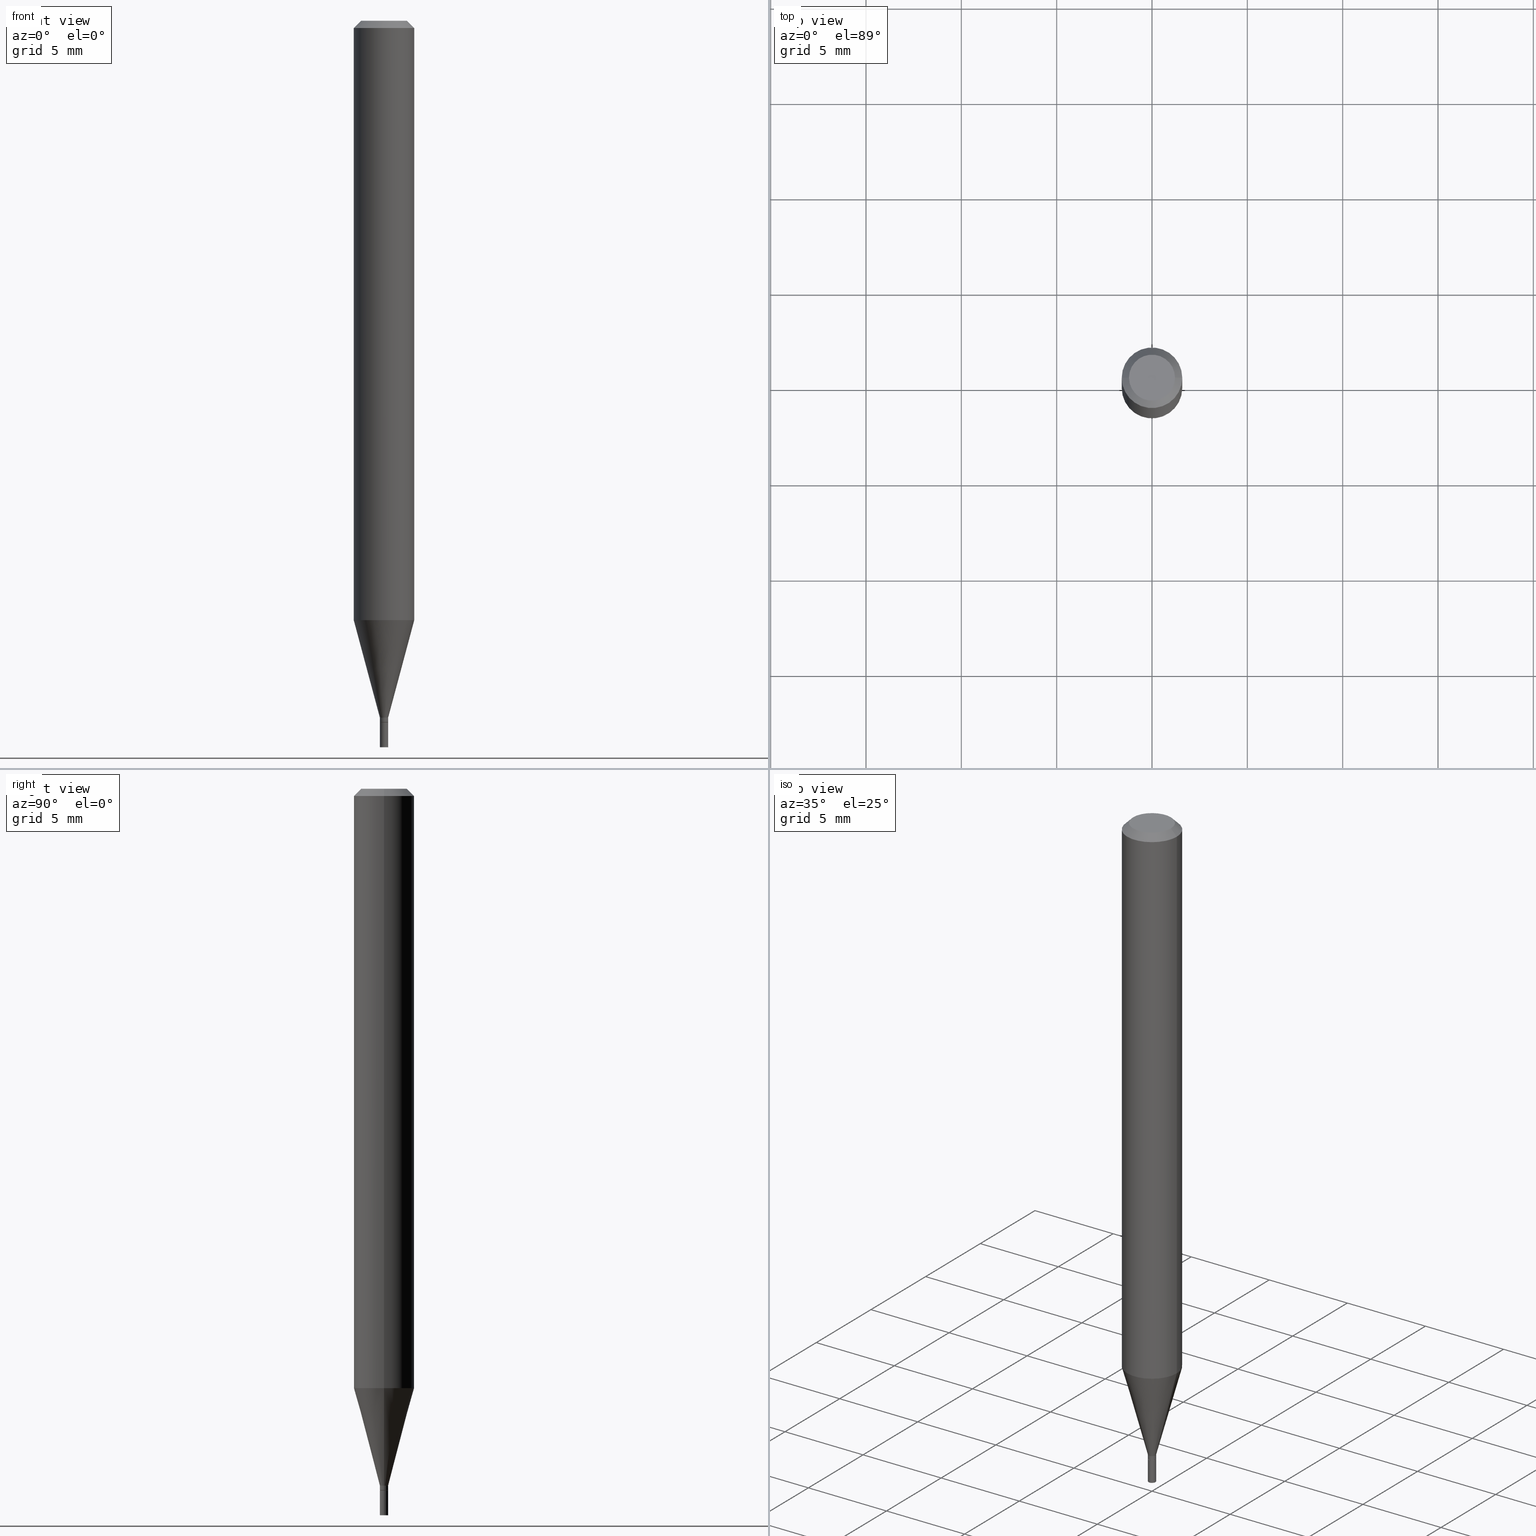
[diagram: canonical four-view strip — front | top / right | iso, engineering-drawing reading convention]
A machine part, canonical four-view strip (front | top / right | iso — engineering-drawing reading convention). The complete STEP part file that produces these views, byte-faithful:
ISO-10303-21;
HEADER;
FILE_DESCRIPTION (( 'STEP AP203' ),
    '1' );
FILE_NAME ('02287.STEP',
    '2024-03-18T20:01:18',
    ( '' ),
    ( '' ),
    'SwSTEP 2.0',
    'SolidWorks 2023',
    '' );
FILE_SCHEMA (( 'CONFIG_CONTROL_DESIGN' ));
ENDSEC;

DATA;
#1 = DIRECTION ( 'NONE',  ( 1.000000000000000000, -6.982962677686266711E-15, 4.876176775795936353E-29 ) ) ;
#2 = EDGE_LOOP ( 'NONE', ( #289, #50, #224, #191 ) ) ;
#3 = DIRECTION ( 'NONE',  ( -2.445468806185136597E-29, 3.491481338843145583E-15, 1.000000000000000000 ) ) ;
#4 = EDGE_CURVE ( 'NONE', #117, #370, #388, .T. ) ;
#5 = DIRECTION ( 'NONE',  ( 1.000000000000000000, -6.982962677686265922E-15, 4.876176775795935793E-29 ) ) ;
#6 = VECTOR ( 'NONE', #186, 39.37007874015748143 ) ;
#7 = CARTESIAN_POINT ( 'NONE',  ( 0.000000000000000000, 0.000000000000000000, 0.000000000000000000 ) ) ;
#8 = DATE_AND_TIME ( #66, #102 ) ;
#9 = CIRCLE ( 'NONE', #332, 0.06250000000000000000 ) ;
#10 = CARTESIAN_POINT ( 'NONE',  ( 0.008499999999999922548, -5.083596829355619552E-15, -1.439000000000000057 ) ) ;
#11 = DIRECTION ( 'NONE',  ( -2.445468806185136597E-29, 3.491481338843145583E-15, 1.000000000000000000 ) ) ;
#12 = VERTEX_POINT ( 'NONE', #217 ) ;
#13 = APPROVAL_STATUS ( 'not_yet_approved' ) ;
#14 = ORIENTED_EDGE ( 'NONE', *, *, #391, .T. ) ;
#15 = DIMENSIONAL_EXPONENTS ( 1.000000000000000000, 0.000000000000000000, 0.000000000000000000, 0.000000000000000000, 0.000000000000000000, 0.000000000000000000, 0.000000000000000000 ) ;
#16 = AXIS2_PLACEMENT_3D ( 'NONE', #428, #3, #296 ) ;
#17 = AXIS2_PLACEMENT_3D ( 'NONE', #68, #205, #340 ) ;
#18 = EDGE_CURVE ( 'NONE', #117, #213, #319, .T. ) ;
#19 = DIRECTION ( 'NONE',  ( 0.000000000000000000, 0.000000000000000000, 1.000000000000000000 ) ) ;
#20 = EDGE_CURVE ( 'NONE', #338, #187, #45, .T. ) ;
#21 = PERSON_AND_ORGANIZATION_ROLE ( 'creator' ) ;
#22 = CARTESIAN_POINT ( 'NONE',  ( -0.008499999999999922548, 6.039613253960796547E-17, -4.181094826716631533E-31 ) ) ;
#23 = CLOSED_SHELL ( 'NONE', ( #183, #116, #415, #195, #437, #442, #282, #447, #271, #348, #343, #357 ) ) ;
#24 = MANIFOLD_SOLID_BREP ( 'Body-Move/Copy2[1]', #297 ) ;
#25 = MANIFOLD_SOLID_BREP ( 'Body-Move/Copy2[2]', #23 ) ;
#26 = VECTOR ( 'NONE', #407, 39.37007874015748143 ) ;
#27 = LOCAL_TIME ( 16, 1, 18.00000000000000000, #307 ) ;
#28 = DIRECTION ( 'NONE',  ( 1.000000000000000000, -6.982962677686266711E-15, 0.000000000000000000 ) ) ;
#29 = APPROVAL_ROLE ( '' ) ;
#30 = EDGE_CURVE ( 'NONE', #435, #181, #272, .T. ) ;
#31 = DIRECTION ( 'NONE',  ( -1.000000000000000000, 6.982962677686265922E-15, -4.876176775795935793E-29 ) ) ;
#32 = DIRECTION ( 'NONE',  ( 1.000000000000000000, -6.982962677686211490E-15, 0.000000000000000000 ) ) ;
#33 = EDGE_LOOP ( 'NONE', ( #100, #260, #14, #219 ) ) ;
#34 = DIRECTION ( 'NONE',  ( 0.7071067811865134889, -7.319954787623140872E-15, -0.7071067811865816566 ) ) ;
#35 = CARTESIAN_POINT ( 'NONE',  ( 0.008000000000000000167, -5.115020161405208194E-15, -1.449000000000000066 ) ) ;
#36 = CIRCLE ( 'NONE', #300, 0.008500000000000000611 ) ;
#37 = EDGE_CURVE ( 'NONE', #181, #52, #150, .T. ) ;
#38 = CIRCLE ( 'NONE', #262, 0.06250000000000000000 ) ;
#39 = DIRECTION ( 'NONE',  ( -2.445468806185136597E-29, 3.491481338843145583E-15, 1.000000000000000000 ) ) ;
#40 = ORIENTED_EDGE ( 'NONE', *, *, #366, .T. ) ;
#41 = FACE_OUTER_BOUND ( 'NONE', #121, .T. ) ;
#42 = ORIENTED_EDGE ( 'NONE', *, *, #158, .F. ) ;
#43 = EDGE_CURVE ( 'NONE', #81, #421, #317, .T. ) ;
#44 = CARTESIAN_POINT ( 'NONE',  ( 3.542261565759170446E-29, -5.057410719314296998E-15, -1.448500000000000121 ) ) ;
#45 = LINE ( 'NONE', #284, #6 ) ;
#46 = CARTESIAN_POINT ( 'NONE',  ( 0.008500000000000000611, -5.118511642744051990E-15, -1.449000000000000066 ) ) ;
#47 = AXIS2_PLACEMENT_3D ( 'NONE', #223, #295, #390 ) ;
#48 = PRODUCT ( '02287', '02287', '', ( #240 ) ) ;
#49 = CARTESIAN_POINT ( 'NONE',  ( -0.008499999999999922548, -4.997014586774688823E-15, -1.448500000000000121 ) ) ;
#50 = ORIENTED_EDGE ( 'NONE', *, *, #446, .T. ) ;
#51 = FACE_OUTER_BOUND ( 'NONE', #461, .T. ) ;
#52 = VERTEX_POINT ( 'NONE', #49 ) ;
#53 = CARTESIAN_POINT ( 'NONE',  ( 3.543484300162263247E-29, -5.059156459983718502E-15, -1.449000000000000066 ) ) ;
#54 = ORIENTED_EDGE ( 'NONE', *, *, #267, .F. ) ;
#55 = EDGE_CURVE ( 'NONE', #181, #435, #237, .T. ) ;
#56 = COORDINATED_UNIVERSAL_TIME_OFFSET ( 5, 0, .BEHIND. ) ;
#57 = AXIS2_PLACEMENT_3D ( 'NONE', #126, #285, #88 ) ;
#58 = APPROVAL_PERSON_ORGANIZATION ( #333, #410, #334 ) ;
#59 = CONICAL_SURFACE ( 'NONE', #65, 0.008499999999999922548, 0.2617993877991501295 ) ;
#60 = ORIENTED_EDGE ( 'NONE', *, *, #158, .T. ) ;
#61 = APPROVAL_ROLE ( '' ) ;
#62 = CONICAL_SURFACE ( 'NONE', #148, 0.06250000000000000000, 0.7853981633974000953 ) ;
#63 = PLANE ( 'NONE',  #360 ) ;
#64 = APPLICATION_CONTEXT ( 'configuration controlled 3d designs of mechanical parts and assemblies' ) ;
#65 = AXIS2_PLACEMENT_3D ( 'NONE', #463, #39, #216 ) ;
#66 = CALENDAR_DATE ( 2024, 18, 3 ) ;
#67 = CARTESIAN_POINT ( 'NONE',  ( 0.008000000000000000167, -5.115020161405208194E-15, -1.449000000000000066 ) ) ;
#68 = CARTESIAN_POINT ( 'NONE',  ( 3.519029612100411702E-29, -5.024241646595286853E-15, -1.439000000000000057 ) ) ;
#69 = CARTESIAN_POINT ( 'NONE',  ( -0.06249999999999999306, -3.876511606232199217E-15, -1.237469256391281025 ) ) ;
#70 = PERSON_AND_ORGANIZATION_ROLE ( 'classification_officer' ) ;
#71 = EDGE_CURVE ( 'NONE', #218, #187, #310, .T. ) ;
#72 = APPROVAL ( #13, 'UNSPECIFIED' ) ;
#73 =( GEOMETRIC_REPRESENTATION_CONTEXT ( 3 ) GLOBAL_UNCERTAINTY_ASSIGNED_CONTEXT ( ( #90 ) ) GLOBAL_UNIT_ASSIGNED_CONTEXT ( ( #212, #266, #404 ) ) REPRESENTATION_CONTEXT ( 'NONE', 'WORKASPACE' ) );
#74 = ORIENTED_EDGE ( 'NONE', *, *, #30, .F. ) ;
#75 = AXIS2_PLACEMENT_3D ( 'NONE', #358, #324, #1 ) ;
#76 = LENGTH_MEASURE_WITH_UNIT ( LENGTH_MEASURE( 0.02539999999999999897 ), #246 );
#77 = LINE ( 'NONE', #416, #137 ) ;
#78 = FACE_OUTER_BOUND ( 'NONE', #83, .T. ) ;
#79 = CYLINDRICAL_SURFACE ( 'NONE', #91, 0.06250000000000000000 ) ;
#80 = AXIS2_PLACEMENT_3D ( 'NONE', #120, #460, #466 ) ;
#81 = VERTEX_POINT ( 'NONE', #247 ) ;
#82 = AXIS2_PLACEMENT_3D ( 'NONE', #280, #242, #109 ) ;
#83 = EDGE_LOOP ( 'NONE', ( #95, #233, #160, #54 ) ) ;
#84 = CARTESIAN_POINT ( 'NONE',  ( 3.519029612100411702E-29, -5.024241646595286853E-15, -1.439000000000000057 ) ) ;
#85 = FACE_OUTER_BOUND ( 'NONE', #33, .T. ) ;
#86 = VERTEX_POINT ( 'NONE', #383 ) ;
#87 = DIRECTION ( 'NONE',  ( -2.445468806185136597E-29, 3.491481338843145583E-15, 1.000000000000000000 ) ) ;
#88 = DIRECTION ( 'NONE',  ( 1.000000000000000000, -6.982962677686267499E-15, 5.108144071313017768E-29 ) ) ;
#89 = ORIENTED_EDGE ( 'NONE', *, *, #136, .T. ) ;
#90 = UNCERTAINTY_MEASURE_WITH_UNIT (LENGTH_MEASURE( 1.000000000000000082E-05 ), #212, 'distance_accuracy_value', 'NONE');
#91 = AXIS2_PLACEMENT_3D ( 'NONE', #309, #306, #393 ) ;
#92 = PRODUCT_DEFINITION_FORMATION_WITH_SPECIFIED_SOURCE ( 'ANY', '', #48, .NOT_KNOWN. ) ;
#93 = FACE_OUTER_BOUND ( 'NONE', #327, .T. ) ;
#94 = DIRECTION ( 'NONE',  ( -2.445468806185136597E-29, 3.491481338843145583E-15, 1.000000000000000000 ) ) ;
#95 = ORIENTED_EDGE ( 'NONE', *, *, #18, .F. ) ;
#96 = DIRECTION ( 'NONE',  ( -0.7071067811865134889, 2.468850131081900101E-15, -0.7071067811865816566 ) ) ;
#97 = EDGE_LOOP ( 'NONE', ( #362, #60 ) ) ;
#98 = APPROVAL_DATE_TIME ( #8, #410 ) ;
#99 = CYLINDRICAL_SURFACE ( 'NONE', #75, 0.008499999999999922548 ) ;
#100 = ORIENTED_EDGE ( 'NONE', *, *, #204, .F. ) ;
#101 = AXIS2_PLACEMENT_3D ( 'NONE', #276, #243, #28 ) ;
#102 = LOCAL_TIME ( 16, 1, 18.00000000000000000, #104 ) ;
#103 = EDGE_CURVE ( 'NONE', #352, #12, #77, .T. ) ;
#104 = COORDINATED_UNIVERSAL_TIME_OFFSET ( 5, 0, .BEHIND. ) ;
#105 = APPLICATION_PROTOCOL_DEFINITION ( 'international standard', 'config_control_design', 1994, #325 ) ;
#106 = AXIS2_PLACEMENT_3D ( 'NONE', #398, #222, #392 ) ;
#107 = DATE_AND_TIME ( #203, #303 ) ;
#108 = VECTOR ( 'NONE', #430, 39.37007874015748143 ) ;
#109 = DIRECTION ( 'NONE',  ( 1.000000000000000000, -6.982962677686211490E-15, 0.000000000000000000 ) ) ;
#110 = DIRECTION ( 'NONE',  ( -2.445468806185136597E-29, 3.491481338843145583E-15, 1.000000000000000000 ) ) ;
#111 = DIRECTION ( 'NONE',  ( -1.000000000000000000, 6.982962677686266711E-15, 0.000000000000000000 ) ) ;
#112 = CARTESIAN_POINT ( 'NONE',  ( 3.543484300162263247E-29, -5.059156459983718502E-15, -1.449000000000000066 ) ) ;
#113 = AXIS2_PLACEMENT_3D ( 'NONE', #234, #94, #294 ) ;
#114 = LOCAL_TIME ( 16, 1, 18.00000000000000000, #56 ) ;
#115 = DIRECTION ( 'NONE',  ( 1.000000000000000000, -6.982962677686262766E-15, 0.000000000000000000 ) ) ;
#116 = ADVANCED_FACE ( 'NONE', ( #308 ), #123, .T. ) ;
#117 = VERTEX_POINT ( 'NONE', #118 ) ;
#118 = CARTESIAN_POINT ( 'NONE',  ( -0.008499999999999922548, -4.420178560143938947E-15, -1.439000000000000057 ) ) ;
#119 = DIRECTION ( 'NONE',  ( -2.445468806185136877E-29, 3.491481338843145188E-15, 1.000000000000000000 ) ) ;
#120 = CARTESIAN_POINT ( 'NONE',  ( 3.543484300162263247E-29, -5.059156459983718502E-15, -1.449000000000000066 ) ) ;
#121 = EDGE_LOOP ( 'NONE', ( #40, #255, #254, #130 ) ) ;
#122 = DIRECTION ( 'NONE',  ( 2.445468806185136597E-29, -3.491481338843145583E-15, -1.000000000000000000 ) ) ;
#123 = CONICAL_SURFACE ( 'NONE', #82, 0.008000000000000000167, 0.7853981633974718157 ) ;
#124 = CARTESIAN_POINT ( 'NONE',  ( 3.543484300162263247E-29, -5.059156459983718502E-15, -1.449000000000000066 ) ) ;
#125 = FACE_OUTER_BOUND ( 'NONE', #2, .T. ) ;
#126 = CARTESIAN_POINT ( 'NONE',  ( -3.538878827018360888E-44, 5.052581064911080951E-30, 1.447116732001547520E-15 ) ) ;
#127 = ORIENTED_EDGE ( 'NONE', *, *, #103, .F. ) ;
#128 = DIRECTION ( 'NONE',  ( 0.2588190451025214611, 1.565188264969621573E-15, 0.9659258262890682012 ) ) ;
#129 = CARTESIAN_POINT ( 'NONE',  ( -0.06250000000000000000, 4.440892098500626162E-16, -3.074334431409316114E-30 ) ) ;
#130 = ORIENTED_EDGE ( 'NONE', *, *, #391, .F. ) ;
#131 = AXIS2_PLACEMENT_3D ( 'NONE', #7, #384, #161 ) ;
#132 = CARTESIAN_POINT ( 'NONE',  ( 3.543484300162263247E-29, -5.059156459983718502E-15, -1.449000000000000066 ) ) ;
#133 = CC_DESIGN_DATE_AND_TIME_ASSIGNMENT ( #171, #173, ( #424 ) ) ;
#134 = ORIENTED_EDGE ( 'NONE', *, *, #200, .F. ) ;
#135 = DIRECTION ( 'NONE',  ( 1.000000000000000000, 0.000000000000000000, 0.000000000000000000 ) ) ;
#136 = EDGE_CURVE ( 'NONE', #370, #117, #344, .T. ) ;
#137 = VECTOR ( 'NONE', #177, 39.37007874015748143 ) ;
#138 = CC_DESIGN_APPROVAL ( #410, ( #92 ) ) ;
#139 = CIRCLE ( 'NONE', #389, 0.008500000000000000611 ) ;
#140 = ORIENTED_EDGE ( 'NONE', *, *, #18, .T. ) ;
#141 = PERSON_AND_ORGANIZATION_ROLE ( 'creator' ) ;
#142 = ORIENTED_EDGE ( 'NONE', *, *, #43, .F. ) ;
#143 = CARTESIAN_POINT ( 'NONE',  ( 3.026192465117994899E-29, -4.320600816082261833E-15, -1.237469256391281025 ) ) ;
#144 = CARTESIAN_POINT ( 'NONE',  ( 3.668203209277705088E-31, -5.237222008264718399E-17, -0.01499999999999999944 ) ) ;
#145 = ORIENTED_EDGE ( 'NONE', *, *, #20, .T. ) ;
#146 = AXIS2_PLACEMENT_3D ( 'NONE', #337, #19, #135 ) ;
#147 = VECTOR ( 'NONE', #96, 39.37007874015748143 ) ;
#148 = AXIS2_PLACEMENT_3D ( 'NONE', #452, #122, #250 ) ;
#149 = DIRECTION ( 'NONE',  ( -1.000000000000000000, 6.982962677686265922E-15, -4.876176775795935793E-29 ) ) ;
#150 = LINE ( 'NONE', #292, #108 ) ;
#151 = ORIENTED_EDGE ( 'NONE', *, *, #386, .T. ) ;
#152 = LINE ( 'NONE', #291, #323 ) ;
#153 = ORIENTED_EDGE ( 'NONE', *, *, #456, .T. ) ;
#154 = ORIENTED_EDGE ( 'NONE', *, *, #71, .F. ) ;
#155 = LINE ( 'NONE', #322, #406 ) ;
#156 = CARTESIAN_POINT ( 'NONE',  ( 0.000000000000000000, 0.000000000000000000, 0.000000000000000000 ) ) ;
#157 = EDGE_LOOP ( 'NONE', ( #151, #427, #434, #127 ) ) ;
#158 = EDGE_CURVE ( 'NONE', #421, #81, #417, .T. ) ;
#159 = CARTESIAN_POINT ( 'NONE',  ( 0.06249999999999999306, -4.757035983437653502E-15, -1.237469256391281025 ) ) ;
#160 = ORIENTED_EDGE ( 'NONE', *, *, #200, .T. ) ;
#161 = DIRECTION ( 'NONE',  ( 1.000000000000000000, -6.982962677686267499E-15, 4.876176775795935793E-29 ) ) ;
#162 = LINE ( 'NONE', #129, #252 ) ;
#163 = VERTEX_POINT ( 'NONE', #354 ) ;
#164 = ORIENTED_EDGE ( 'NONE', *, *, #395, .F. ) ;
#165 = DIRECTION ( 'NONE',  ( -2.438088387897960049E-29, 3.491481338843145188E-15, 1.000000000000000000 ) ) ;
#166 = AXIS2_PLACEMENT_3D ( 'NONE', #132, #87, #326 ) ;
#167 = CARTESIAN_POINT ( 'NONE',  ( 0.000000000000000000, 0.000000000000000000, 0.000000000000000000 ) ) ;
#168 = PERSON_AND_ORGANIZATION ( #268, #238 ) ;
#169 = ORIENTED_EDGE ( 'NONE', *, *, #30, .T. ) ;
#170 = FACE_OUTER_BOUND ( 'NONE', #293, .T. ) ;
#171 = DATE_AND_TIME ( #342, #361 ) ;
#172 = AXIS2_PLACEMENT_3D ( 'NONE', #156, #193, #232 ) ;
#173 = DATE_TIME_ROLE ( 'classification_date' ) ;
#174 = LINE ( 'NONE', #315, #263 ) ;
#175 = DIRECTION ( 'NONE',  ( 1.000000000000000000, -6.982962677686266711E-15, 4.876176775795936353E-29 ) ) ;
#176 = FACE_OUTER_BOUND ( 'NONE', #385, .T. ) ;
#177 = DIRECTION ( 'NONE',  ( -2.445468806185136877E-29, 3.491481338843145188E-15, 1.000000000000000000 ) ) ;
#178 = CARTESIAN_POINT ( 'NONE',  ( 5.935518276036870316E-17, 0.008499999999994942157, -1.449000000000000066 ) ) ;
#179 = CIRCLE ( 'NONE', #457, 0.06250000000000000000 ) ;
#180 = DIRECTION ( 'NONE',  ( -0.2588190451025214611, 5.211531920934551042E-15, 0.9659258262890682012 ) ) ;
#181 = VERTEX_POINT ( 'NONE', #426 ) ;
#182 = DIRECTION ( 'NONE',  ( -2.445468806185136597E-29, 3.491481338843145583E-15, 1.000000000000000000 ) ) ;
#183 = ADVANCED_FACE ( 'NONE', ( #41 ), #214, .T. ) ;
#184 = ADVANCED_BREP_SHAPE_REPRESENTATION ( '02287', ( #24, #25, #146 ), #73 ) ;
#185 = DIRECTION ( 'NONE',  ( 1.000000000000000000, -6.982962677686274599E-15, 0.000000000000000000 ) ) ;
#186 = DIRECTION ( 'NONE',  ( -2.445468806185136877E-29, 3.491481338843145188E-15, 1.000000000000000000 ) ) ;
#187 = VERTEX_POINT ( 'NONE', #46 ) ;
#188 = AXIS2_PLACEMENT_3D ( 'NONE', #53, #226, #5 ) ;
#189 = DIRECTION ( 'NONE',  ( -2.445468806185136597E-29, 3.491481338843145583E-15, 1.000000000000000000 ) ) ;
#190 = ADVANCED_FACE ( 'NONE', ( #93 ), #330, .T. ) ;
#191 = ORIENTED_EDGE ( 'NONE', *, *, #20, .F. ) ;
#192 = CC_DESIGN_PERSON_AND_ORGANIZATION_ASSIGNMENT ( #168, #419, ( #92 ) ) ;
#193 = DIRECTION ( 'NONE',  ( -2.445468806185136597E-29, 3.491481338843145583E-15, 1.000000000000000000 ) ) ;
#194 = CIRCLE ( 'NONE', #450, 0.008499999999999922548 ) ;
#195 = ADVANCED_FACE ( 'NONE', ( #462 ), #329, .T. ) ;
#196 = PLANE ( 'NONE',  #188 ) ;
#197 = ORIENTED_EDGE ( 'NONE', *, *, #256, .F. ) ;
#198 = COORDINATED_UNIVERSAL_TIME_OFFSET ( 5, 0, .BEHIND. ) ;
#199 = LINE ( 'NONE', #67, #445 ) ;
#200 = EDGE_CURVE ( 'NONE', #370, #352, #155, .T. ) ;
#201 = APPROVAL_STATUS ( 'not_yet_approved' ) ;
#202 = AXIS2_PLACEMENT_3D ( 'NONE', #429, #189, #185 ) ;
#203 = CALENDAR_DATE ( 2024, 18, 3 ) ;
#204 = EDGE_CURVE ( 'NONE', #52, #117, #436, .T. ) ;
#205 = DIRECTION ( 'NONE',  ( -2.445468806185136597E-29, 3.491481338843145583E-15, 1.000000000000000000 ) ) ;
#206 = CARTESIAN_POINT ( 'NONE',  ( 3.668203209277704895E-29, -5.237222008264718177E-15, -1.500000000000000222 ) ) ;
#207 = DIRECTION ( 'NONE',  ( 2.445468806185136597E-29, -3.491481338843145583E-15, -1.000000000000000000 ) ) ;
#208 = PERSON_AND_ORGANIZATION ( #268, #238 ) ;
#209 = EDGE_CURVE ( 'NONE', #421, #12, #376, .T. ) ;
#210 = CC_DESIGN_APPROVAL ( #335, ( #424 ) ) ;
#211 = EDGE_LOOP ( 'NONE', ( #355, #142, #251, #365 ) ) ;
#212 =( CONVERSION_BASED_UNIT ( 'INCH', #76 ) LENGTH_UNIT ( ) NAMED_UNIT ( #15 ) );
#213 = VERTEX_POINT ( 'NONE', #69 ) ;
#214 = CYLINDRICAL_SURFACE ( 'NONE', #351, 0.008499999999999922548 ) ;
#215 = VECTOR ( 'NONE', #180, 39.37007874015747433 ) ;
#216 = DIRECTION ( 'NONE',  ( 1.000000000000000000, -6.982962677686225690E-15, 0.000000000000000000 ) ) ;
#217 = CARTESIAN_POINT ( 'NONE',  ( 0.06250000000000000000, -4.888073874380388472E-16, -0.01499999999999999944 ) ) ;
#218 = VERTEX_POINT ( 'NONE', #312 ) ;
#219 = ORIENTED_EDGE ( 'NONE', *, *, #4, .F. ) ;
#220 = PLANE ( 'NONE',  #261 ) ;
#221 = CARTESIAN_POINT ( 'NONE',  ( -0.06250000000000000000, 3.840629472727444916E-16, -0.01499999999999999944 ) ) ;
#222 = DIRECTION ( 'NONE',  ( -2.445468806185136597E-29, 3.491481338843145583E-15, 1.000000000000000000 ) ) ;
#223 = CARTESIAN_POINT ( 'NONE',  ( -3.538878827018360888E-44, 5.052581064911080951E-30, 1.447116732001547520E-15 ) ) ;
#224 = ORIENTED_EDGE ( 'NONE', *, *, #288, .F. ) ;
#225 = PRODUCT_RELATED_PRODUCT_CATEGORY ( 'detail', '', ( #48 ) ) ;
#226 = DIRECTION ( 'NONE',  ( -2.438088387897960049E-29, 3.491481338843145188E-15, 1.000000000000000000 ) ) ;
#227 = CIRCLE ( 'NONE', #101, 0.06250000000000000000 ) ;
#228 = AXIS2_PLACEMENT_3D ( 'NONE', #84, #182, #248 ) ;
#229 = DIRECTION ( 'NONE',  ( 1.000000000000000000, -6.982962677686274599E-15, 0.000000000000000000 ) ) ;
#230 = ORIENTED_EDGE ( 'NONE', *, *, #37, .T. ) ;
#231 = PRODUCT_DEFINITION ( 'UNKNOWN', '', #92, #290 ) ;
#232 = DIRECTION ( 'NONE',  ( 1.000000000000000000, -6.982962677686267499E-15, 4.876176775795935793E-29 ) ) ;
#233 = ORIENTED_EDGE ( 'NONE', *, *, #4, .T. ) ;
#234 = CARTESIAN_POINT ( 'NONE',  ( 3.542261565759170446E-29, -5.057410719314296998E-15, -1.448500000000000121 ) ) ;
#235 = CARTESIAN_POINT ( 'NONE',  ( 3.543484300162263247E-29, -5.059156459983718502E-15, -1.449000000000000066 ) ) ;
#236 = ORIENTED_EDGE ( 'NONE', *, *, #71, .T. ) ;
#237 = CIRCLE ( 'NONE', #279, 0.008000000000000000167 ) ;
#238 = ORGANIZATION ( 'UNSPECIFIED', 'UNSPECIFIED', '' ) ;
#239 = CARTESIAN_POINT ( 'NONE',  ( 0.06250000000000000000, -4.811533449433679005E-16, -0.01499999999999999944 ) ) ;
#240 = MECHANICAL_CONTEXT ( 'NONE', #325, 'mechanical' ) ;
#241 = CALENDAR_DATE ( 2024, 18, 3 ) ;
#242 = DIRECTION ( 'NONE',  ( -2.445468806185136597E-29, 3.491481338843145583E-15, 1.000000000000000000 ) ) ;
#243 = DIRECTION ( 'NONE',  ( -2.445468806185136597E-29, 3.491481338843145583E-15, 1.000000000000000000 ) ) ;
#244 = CARTESIAN_POINT ( 'NONE',  ( -0.06250000000000000000, -1.742397308232391840E-15, -0.01499999999999999944 ) ) ;
#245 = FACE_OUTER_BOUND ( 'NONE', #97, .T. ) ;
#246 =( LENGTH_UNIT ( ) NAMED_UNIT ( * ) SI_UNIT ( $, .METRE. ) );
#247 = CARTESIAN_POINT ( 'NONE',  ( -0.04749999999999999362, 3.578768372314235651E-16, 1.447116732001545153E-15 ) ) ;
#248 = DIRECTION ( 'NONE',  ( 1.000000000000000000, -6.982962677686225690E-15, 0.000000000000000000 ) ) ;
#249 = EDGE_LOOP ( 'NONE', ( #169, #230, #299, #377 ) ) ;
#250 = DIRECTION ( 'NONE',  ( -1.000000000000000000, 6.982962677686266711E-15, 0.000000000000000000 ) ) ;
#251 = ORIENTED_EDGE ( 'NONE', *, *, #353, .T. ) ;
#252 = VECTOR ( 'NONE', #259, 39.37007874015748143 ) ;
#253 = CC_DESIGN_APPROVAL ( #72, ( #231 ) ) ;
#254 = ORIENTED_EDGE ( 'NONE', *, *, #136, .F. ) ;
#255 = ORIENTED_EDGE ( 'NONE', *, *, #204, .T. ) ;
#256 = EDGE_CURVE ( 'NONE', #338, #86, #36, .T. ) ;
#257 = CARTESIAN_POINT ( 'NONE',  ( 3.026192465117994899E-29, -4.320600816082261833E-15, -1.237469256391281025 ) ) ;
#258 = ORIENTED_EDGE ( 'NONE', *, *, #446, .F. ) ;
#259 = DIRECTION ( 'NONE',  ( -2.445468806185136877E-29, 3.491481338843145188E-15, 1.000000000000000000 ) ) ;
#260 = ORIENTED_EDGE ( 'NONE', *, *, #374, .T. ) ;
#261 = AXIS2_PLACEMENT_3D ( 'NONE', #178, #356, #149 ) ;
#262 = AXIS2_PLACEMENT_3D ( 'NONE', #144, #320, #277 ) ;
#263 = VECTOR ( 'NONE', #119, 39.37007874015748143 ) ;
#264 = LINE ( 'NONE', #221, #147 ) ;
#265 = EDGE_LOOP ( 'NONE', ( #89, #140, #458, #134 ) ) ;
#266 =( NAMED_UNIT ( * ) PLANE_ANGLE_UNIT ( ) SI_UNIT ( $, .RADIAN. ) );
#267 = EDGE_CURVE ( 'NONE', #213, #352, #9, .T. ) ;
#268 = PERSON ( 'UNSPECIFIED', 'UNSPECIFIED', 'UNSPECIFIED', ('UNSPECIFIED'), ('UNSPECIFIED'), ('UNSPECIFIED') ) ;
#269 = CIRCLE ( 'NONE', #113, 0.008499999999999922548 ) ;
#270 = EDGE_CURVE ( 'NONE', #418, #12, #227, .T. ) ;
#271 = ADVANCED_FACE ( 'NONE', ( #245 ), #346, .F. ) ;
#272 = CIRCLE ( 'NONE', #80, 0.008000000000000000167 ) ;
#273 = AXIS2_PLACEMENT_3D ( 'NONE', #341, #454, #31 ) ;
#274 = APPROVAL_DATE_TIME ( #378, #335 ) ;
#275 = SECURITY_CLASSIFICATION_LEVEL ( 'unclassified' ) ;
#276 = CARTESIAN_POINT ( 'NONE',  ( 3.668203209277705088E-31, -5.237222008264718399E-17, -0.01499999999999999944 ) ) ;
#277 = DIRECTION ( 'NONE',  ( 1.000000000000000000, -6.982962677686266711E-15, 0.000000000000000000 ) ) ;
#278 = COORDINATED_UNIVERSAL_TIME_OFFSET ( 5, 0, .BEHIND. ) ;
#279 = AXIS2_PLACEMENT_3D ( 'NONE', #235, #372, #32 ) ;
#280 = CARTESIAN_POINT ( 'NONE',  ( 3.543484300162263247E-29, -5.059156459983718502E-15, -1.449000000000000066 ) ) ;
#281 = ORIENTED_EDGE ( 'NONE', *, *, #55, .F. ) ;
#282 = ADVANCED_FACE ( 'NONE', ( #170 ), #79, .T. ) ;
#283 = CC_DESIGN_PERSON_AND_ORGANIZATION_ASSIGNMENT ( #455, #70, ( #424 ) ) ;
#284 = CARTESIAN_POINT ( 'NONE',  ( 0.008500000000000000611, -5.935518276033327838E-17, 4.144750259426545879E-31 ) ) ;
#285 = DIRECTION ( 'NONE',  ( -2.445468806185136597E-29, 3.491481338843145583E-15, 1.000000000000000000 ) ) ;
#286 = ORIENTED_EDGE ( 'NONE', *, *, #353, .F. ) ;
#287 = AXIS2_PLACEMENT_3D ( 'NONE', #379, #207, #111 ) ;
#288 = EDGE_CURVE ( 'NONE', #187, #218, #139, .T. ) ;
#289 = ORIENTED_EDGE ( 'NONE', *, *, #256, .T. ) ;
#290 = DESIGN_CONTEXT ( 'detailed design', #64, 'design' ) ;
#291 = CARTESIAN_POINT ( 'NONE',  ( 0.008499999999999922548, -5.935518276033272371E-17, 4.144750259426508219E-31 ) ) ;
#292 = CARTESIAN_POINT ( 'NONE',  ( -0.008000000000000000167, -5.002313041122910436E-15, -1.449000000000000066 ) ) ;
#293 = EDGE_LOOP ( 'NONE', ( #164, #349, #403, #441 ) ) ;
#294 = DIRECTION ( 'NONE',  ( 1.000000000000000000, -6.982962677686225690E-15, 0.000000000000000000 ) ) ;
#295 = DIRECTION ( 'NONE',  ( -2.445468806185136597E-29, 3.491481338843145583E-15, 1.000000000000000000 ) ) ;
#296 = DIRECTION ( 'NONE',  ( 1.000000000000000000, -6.982962677686266711E-15, 4.876176775795935793E-29 ) ) ;
#297 = CLOSED_SHELL ( 'NONE', ( #364, #396, #190, #443 ) ) ;
#298 = DIRECTION ( 'NONE',  ( -2.445468806185136877E-29, 3.491481338843145188E-15, 1.000000000000000000 ) ) ;
#299 = ORIENTED_EDGE ( 'NONE', *, *, #366, .F. ) ;
#300 = AXIS2_PLACEMENT_3D ( 'NONE', #206, #110, #387 ) ;
#301 = EDGE_LOOP ( 'NONE', ( #399, #305, #431, #359 ) ) ;
#302 = CONICAL_SURFACE ( 'NONE', #166, 0.008000000000000000167, 0.7853981633974718157 ) ;
#303 = LOCAL_TIME ( 16, 1, 18.00000000000000000, #198 ) ;
#304 = PERSON_AND_ORGANIZATION ( #268, #238 ) ;
#305 = ORIENTED_EDGE ( 'NONE', *, *, #55, .T. ) ;
#306 = DIRECTION ( 'NONE',  ( -2.445468806185136597E-29, 3.491481338843145583E-15, 1.000000000000000000 ) ) ;
#307 = COORDINATED_UNIVERSAL_TIME_OFFSET ( 5, 0, .BEHIND. ) ;
#308 = FACE_OUTER_BOUND ( 'NONE', #249, .T. ) ;
#309 = CARTESIAN_POINT ( 'NONE',  ( 0.000000000000000000, 0.000000000000000000, 0.000000000000000000 ) ) ;
#310 = CIRCLE ( 'NONE', #438, 0.008500000000000000611 ) ;
#311 = APPROVAL_PERSON_ORGANIZATION ( #345, #335, #29 ) ;
#312 = CARTESIAN_POINT ( 'NONE',  ( -0.008500000000000000611, -5.087793101584609375E-15, -1.449000000000000066 ) ) ;
#313 = SHAPE_DEFINITION_REPRESENTATION ( #432, #184 ) ;
#314 = DIRECTION ( 'NONE',  ( -2.445468806185136597E-29, 3.491481338843145583E-15, 1.000000000000000000 ) ) ;
#315 = CARTESIAN_POINT ( 'NONE',  ( -0.008500000000000000611, 6.039613253960852014E-17, -4.181094826716670069E-31 ) ) ;
#316 = DIRECTION ( 'NONE',  ( -2.445468806185136597E-29, 3.491481338843145583E-15, 1.000000000000000000 ) ) ;
#317 = CIRCLE ( 'NONE', #57, 0.04749999999999999362 ) ;
#318 = CC_DESIGN_DATE_AND_TIME_ASSIGNMENT ( #373, #409, ( #231 ) ) ;
#319 = LINE ( 'NONE', #459, #215 ) ;
#320 = DIRECTION ( 'NONE',  ( -2.445468806185136597E-29, 3.491481338843145583E-15, 1.000000000000000000 ) ) ;
#321 = ORIENTED_EDGE ( 'NONE', *, *, #288, .T. ) ;
#322 = CARTESIAN_POINT ( 'NONE',  ( 0.008499999999999922548, -5.083596829355619552E-15, -1.439000000000000057 ) ) ;
#323 = VECTOR ( 'NONE', #298, 39.37007874015748143 ) ;
#324 = DIRECTION ( 'NONE',  ( -2.445468806185136597E-29, 3.491481338843145583E-15, 1.000000000000000000 ) ) ;
#325 = APPLICATION_CONTEXT ( 'configuration controlled 3d designs of mechanical parts and assemblies' ) ;
#326 = DIRECTION ( 'NONE',  ( 1.000000000000000000, -6.982962677686211490E-15, 0.000000000000000000 ) ) ;
#327 = EDGE_LOOP ( 'NONE', ( #258, #440, #145, #154 ) ) ;
#328 = ORIENTED_EDGE ( 'NONE', *, *, #209, .T. ) ;
#329 = CYLINDRICAL_SURFACE ( 'NONE', #16, 0.06250000000000000000 ) ;
#330 = CYLINDRICAL_SURFACE ( 'NONE', #131, 0.008500000000000000611 ) ;
#331 = DIRECTION ( 'NONE',  ( 1.000000000000000000, -6.982962677686225690E-15, 0.000000000000000000 ) ) ;
#332 = AXIS2_PLACEMENT_3D ( 'NONE', #143, #314, #115 ) ;
#333 = PERSON_AND_ORGANIZATION ( #268, #238 ) ;
#334 = APPROVAL_ROLE ( '' ) ;
#335 = APPROVAL ( #339, 'UNSPECIFIED' ) ;
#336 = EDGE_CURVE ( 'NONE', #86, #338, #375, .T. ) ;
#337 = CARTESIAN_POINT ( 'NONE',  ( 0.000000000000000000, 0.000000000000000000, 0.000000000000000000 ) ) ;
#338 = VERTEX_POINT ( 'NONE', #439 ) ;
#339 = APPROVAL_STATUS ( 'not_yet_approved' ) ;
#340 = DIRECTION ( 'NONE',  ( 1.000000000000000000, -6.982962677686225690E-15, 0.000000000000000000 ) ) ;
#341 = CARTESIAN_POINT ( 'NONE',  ( 3.316907271900976096E-16, 0.04749999999999999362, 5.577130024057243141E-16 ) ) ;
#342 = CALENDAR_DATE ( 2024, 18, 3 ) ;
#343 = ADVANCED_FACE ( 'NONE', ( #425 ), #302, .T. ) ;
#344 = CIRCLE ( 'NONE', #17, 0.008499999999999922548 ) ;
#345 = PERSON_AND_ORGANIZATION ( #268, #238 ) ;
#346 = PLANE ( 'NONE',  #273 ) ;
#347 = FACE_OUTER_BOUND ( 'NONE', #211, .T. ) ;
#348 = ADVANCED_FACE ( 'NONE', ( #363 ), #196, .F. ) ;
#349 = ORIENTED_EDGE ( 'NONE', *, *, #267, .T. ) ;
#350 = FACE_OUTER_BOUND ( 'NONE', #265, .T. ) ;
#351 = AXIS2_PLACEMENT_3D ( 'NONE', #167, #11, #175 ) ;
#352 = VERTEX_POINT ( 'NONE', #159 ) ;
#353 = EDGE_CURVE ( 'NONE', #81, #418, #264, .T. ) ;
#354 = CARTESIAN_POINT ( 'NONE',  ( 0.008499999999999922548, -5.116765902074629697E-15, -1.448500000000000121 ) ) ;
#355 = ORIENTED_EDGE ( 'NONE', *, *, #209, .F. ) ;
#356 = DIRECTION ( 'NONE',  ( 2.438088387897960049E-29, -3.491481338843145188E-15, -1.000000000000000000 ) ) ;
#357 = ADVANCED_FACE ( 'NONE', ( #85 ), #99, .T. ) ;
#358 = CARTESIAN_POINT ( 'NONE',  ( 0.000000000000000000, 0.000000000000000000, 0.000000000000000000 ) ) ;
#359 = ORIENTED_EDGE ( 'NONE', *, *, #374, .F. ) ;
#360 = AXIS2_PLACEMENT_3D ( 'NONE', #412, #165, #414 ) ;
#361 = LOCAL_TIME ( 16, 1, 18.00000000000000000, #278 ) ;
#362 = ORIENTED_EDGE ( 'NONE', *, *, #43, .T. ) ;
#363 = FACE_OUTER_BOUND ( 'NONE', #369, .T. ) ;
#364 = ADVANCED_FACE ( 'NONE', ( #125 ), #397, .T. ) ;
#365 = ORIENTED_EDGE ( 'NONE', *, *, #270, .T. ) ;
#366 = EDGE_CURVE ( 'NONE', #163, #52, #269, .T. ) ;
#367 = CC_DESIGN_PERSON_AND_ORGANIZATION_ASSIGNMENT ( #208, #141, ( #92 ) ) ;
#368 = DIRECTION ( 'NONE',  ( -2.445468806185136597E-29, 3.491481338843145583E-15, 1.000000000000000000 ) ) ;
#369 = EDGE_LOOP ( 'NONE', ( #74, #281 ) ) ;
#370 = VERTEX_POINT ( 'NONE', #10 ) ;
#371 = APPLICATION_PROTOCOL_DEFINITION ( 'international standard', 'config_control_design', 1994, #64 ) ;
#372 = DIRECTION ( 'NONE',  ( -2.445468806185136597E-29, 3.491481338843145583E-15, 1.000000000000000000 ) ) ;
#373 = DATE_AND_TIME ( #241, #114 ) ;
#374 = EDGE_CURVE ( 'NONE', #52, #163, #194, .T. ) ;
#375 = CIRCLE ( 'NONE', #202, 0.008500000000000000611 ) ;
#376 = LINE ( 'NONE', #239, #382 ) ;
#377 = ORIENTED_EDGE ( 'NONE', *, *, #408, .F. ) ;
#378 = DATE_AND_TIME ( #449, #27 ) ;
#379 = CARTESIAN_POINT ( 'NONE',  ( 3.668203209277705088E-31, -5.237222008264718399E-17, -0.01499999999999999944 ) ) ;
#380 = DIRECTION ( 'NONE',  ( 1.000000000000000000, -6.982962677686274599E-15, 0.000000000000000000 ) ) ;
#381 = EDGE_LOOP ( 'NONE', ( #321, #236 ) ) ;
#382 = VECTOR ( 'NONE', #34, 39.37007874015748143 ) ;
#383 = CARTESIAN_POINT ( 'NONE',  ( -0.008500000000000000611, -5.087793101584609375E-15, -1.500000000000000222 ) ) ;
#384 = DIRECTION ( 'NONE',  ( -2.445468806185136597E-29, 3.491481338843145583E-15, 1.000000000000000000 ) ) ;
#385 = EDGE_LOOP ( 'NONE', ( #42, #328, #153, #286 ) ) ;
#386 = EDGE_CURVE ( 'NONE', #352, #213, #179, .T. ) ;
#387 = DIRECTION ( 'NONE',  ( 1.000000000000000000, -6.982962677686274599E-15, 0.000000000000000000 ) ) ;
#388 = CIRCLE ( 'NONE', #106, 0.008499999999999922548 ) ;
#389 = AXIS2_PLACEMENT_3D ( 'NONE', #124, #400, #229 ) ;
#390 = DIRECTION ( 'NONE',  ( 1.000000000000000000, -6.982962677686267499E-15, 5.108144071313017768E-29 ) ) ;
#391 = EDGE_CURVE ( 'NONE', #163, #370, #152, .T. ) ;
#392 = DIRECTION ( 'NONE',  ( 1.000000000000000000, -6.982962677686225690E-15, 0.000000000000000000 ) ) ;
#393 = DIRECTION ( 'NONE',  ( 1.000000000000000000, -6.982962677686266711E-15, 4.876176775795935793E-29 ) ) ;
#394 = ORIENTED_EDGE ( 'NONE', *, *, #336, .F. ) ;
#395 = EDGE_CURVE ( 'NONE', #213, #418, #162, .T. ) ;
#396 = ADVANCED_FACE ( 'NONE', ( #51 ), #63, .F. ) ;
#397 = CYLINDRICAL_SURFACE ( 'NONE', #172, 0.008500000000000000611 ) ;
#398 = CARTESIAN_POINT ( 'NONE',  ( 3.519029612100411702E-29, -5.024241646595286853E-15, -1.439000000000000057 ) ) ;
#399 = ORIENTED_EDGE ( 'NONE', *, *, #37, .F. ) ;
#400 = DIRECTION ( 'NONE',  ( -2.445468806185136597E-29, 3.491481338843145583E-15, 1.000000000000000000 ) ) ;
#402 = CC_DESIGN_PERSON_AND_ORGANIZATION_ASSIGNMENT ( #413, #444, ( #48 ) ) ;
#401 = APPROVAL_DATE_TIME ( #107, #72 ) ;
#403 = ORIENTED_EDGE ( 'NONE', *, *, #103, .T. ) ;
#404 =( NAMED_UNIT ( * ) SI_UNIT ( $, .STERADIAN. ) SOLID_ANGLE_UNIT ( ) );
#405 = PERSON_AND_ORGANIZATION ( #268, #238 ) ;
#406 = VECTOR ( 'NONE', #128, 39.37007874015747433 ) ;
#407 = DIRECTION ( 'NONE',  ( -2.445468806185136877E-29, 3.491481338843145188E-15, 1.000000000000000000 ) ) ;
#408 = EDGE_CURVE ( 'NONE', #435, #163, #199, .T. ) ;
#409 = DATE_TIME_ROLE ( 'creation_date' ) ;
#410 = APPROVAL ( #201, 'UNSPECIFIED' ) ;
#411 = DIRECTION ( 'NONE',  ( 0.7071067811865642261, -2.468850131082431399E-15, 0.7071067811865309194 ) ) ;
#412 = CARTESIAN_POINT ( 'NONE',  ( 3.576687321579069994E-29, -5.368277968210015545E-15, -1.500000000000000222 ) ) ;
#413 = PERSON_AND_ORGANIZATION ( #268, #238 ) ;
#414 = DIRECTION ( 'NONE',  ( 1.000000000000000000, -6.982962677686265922E-15, 4.876176775795935793E-29 ) ) ;
#415 = ADVANCED_FACE ( 'NONE', ( #176 ), #422, .T. ) ;
#416 = CARTESIAN_POINT ( 'NONE',  ( 0.06250000000000000000, -4.364351673553916694E-16, 3.047610484872459871E-30 ) ) ;
#417 = CIRCLE ( 'NONE', #47, 0.04749999999999999362 ) ;
#418 = VERTEX_POINT ( 'NONE', #244 ) ;
#419 = PERSON_AND_ORGANIZATION_ROLE ( 'design_supplier' ) ;
#420 = CONICAL_SURFACE ( 'NONE', #228, 0.008499999999999922548, 0.2617993877991501295 ) ;
#421 = VERTEX_POINT ( 'NONE', #453 ) ;
#422 = CONICAL_SURFACE ( 'NONE', #287, 0.06250000000000000000, 0.7853981633974000953 ) ;
#423 = FACE_OUTER_BOUND ( 'NONE', #381, .T. ) ;
#424 = SECURITY_CLASSIFICATION ( '', '', #275 ) ;
#425 = FACE_OUTER_BOUND ( 'NONE', #301, .T. ) ;
#426 = CARTESIAN_POINT ( 'NONE',  ( -0.008000000000000000167, -4.999663813948800024E-15, -1.449000000000000066 ) ) ;
#427 = ORIENTED_EDGE ( 'NONE', *, *, #395, .T. ) ;
#428 = CARTESIAN_POINT ( 'NONE',  ( 0.000000000000000000, 0.000000000000000000, 0.000000000000000000 ) ) ;
#429 = CARTESIAN_POINT ( 'NONE',  ( 3.668203209277704895E-29, -5.237222008264718177E-15, -1.500000000000000222 ) ) ;
#430 = DIRECTION ( 'NONE',  ( -0.7071067811865642261, 7.493145998870414114E-15, 0.7071067811865309194 ) ) ;
#431 = ORIENTED_EDGE ( 'NONE', *, *, #408, .T. ) ;
#432 = PRODUCT_DEFINITION_SHAPE ( 'NONE', 'NONE',  #231 ) ;
#433 = DIRECTION ( 'NONE',  ( -2.445468806185136597E-29, 3.491481338843145583E-15, 1.000000000000000000 ) ) ;
#434 = ORIENTED_EDGE ( 'NONE', *, *, #456, .F. ) ;
#435 = VERTEX_POINT ( 'NONE', #35 ) ;
#436 = LINE ( 'NONE', #22, #26 ) ;
#437 = ADVANCED_FACE ( 'NONE', ( #350 ), #420, .T. ) ;
#438 = AXIS2_PLACEMENT_3D ( 'NONE', #112, #316, #380 ) ;
#439 = CARTESIAN_POINT ( 'NONE',  ( 0.008500000000000000611, -5.296577191025051665E-15, -1.500000000000000222 ) ) ;
#440 = ORIENTED_EDGE ( 'NONE', *, *, #336, .T. ) ;
#441 = ORIENTED_EDGE ( 'NONE', *, *, #270, .F. ) ;
#442 = ADVANCED_FACE ( 'NONE', ( #78 ), #59, .T. ) ;
#443 = ADVANCED_FACE ( 'NONE', ( #423 ), #220, .F. ) ;
#444 = PERSON_AND_ORGANIZATION_ROLE ( 'design_owner' ) ;
#445 = VECTOR ( 'NONE', #411, 39.37007874015748143 ) ;
#446 = EDGE_CURVE ( 'NONE', #86, #218, #174, .T. ) ;
#447 = ADVANCED_FACE ( 'NONE', ( #347 ), #62, .T. ) ;
#448 = CC_DESIGN_PERSON_AND_ORGANIZATION_ASSIGNMENT ( #405, #21, ( #231 ) ) ;
#449 = CALENDAR_DATE ( 2024, 18, 3 ) ;
#450 = AXIS2_PLACEMENT_3D ( 'NONE', #44, #368, #331 ) ;
#451 = APPROVAL_PERSON_ORGANIZATION ( #304, #72, #61 ) ;
#452 = CARTESIAN_POINT ( 'NONE',  ( 3.668203209277705088E-31, -5.237222008264718399E-17, -0.01499999999999999944 ) ) ;
#453 = CARTESIAN_POINT ( 'NONE',  ( 0.04749999999999999362, -4.035134999187553478E-16, 1.447116732001550281E-15 ) ) ;
#454 = DIRECTION ( 'NONE',  ( 2.438088387897960049E-29, -3.491481338843145188E-15, -1.000000000000000000 ) ) ;
#455 = PERSON_AND_ORGANIZATION ( #268, #238 ) ;
#456 = EDGE_CURVE ( 'NONE', #12, #418, #38, .T. ) ;
#457 = AXIS2_PLACEMENT_3D ( 'NONE', #257, #433, #465 ) ;
#458 = ORIENTED_EDGE ( 'NONE', *, *, #386, .F. ) ;
#459 = CARTESIAN_POINT ( 'NONE',  ( -0.008499999999999922548, -4.963845514055678678E-15, -1.439000000000000057 ) ) ;
#460 = DIRECTION ( 'NONE',  ( -2.445468806185136597E-29, 3.491481338843145583E-15, 1.000000000000000000 ) ) ;
#461 = EDGE_LOOP ( 'NONE', ( #197, #394 ) ) ;
#462 = FACE_OUTER_BOUND ( 'NONE', #157, .T. ) ;
#463 = CARTESIAN_POINT ( 'NONE',  ( 3.519029612100411702E-29, -5.024241646595286853E-15, -1.439000000000000057 ) ) ;
#464 = CC_DESIGN_SECURITY_CLASSIFICATION ( #424, ( #92 ) ) ;
#465 = DIRECTION ( 'NONE',  ( 1.000000000000000000, -6.982962677686262766E-15, 0.000000000000000000 ) ) ;
#466 = DIRECTION ( 'NONE',  ( 1.000000000000000000, -6.982962677686211490E-15, 0.000000000000000000 ) ) ;
ENDSEC;
END-ISO-10303-21;
